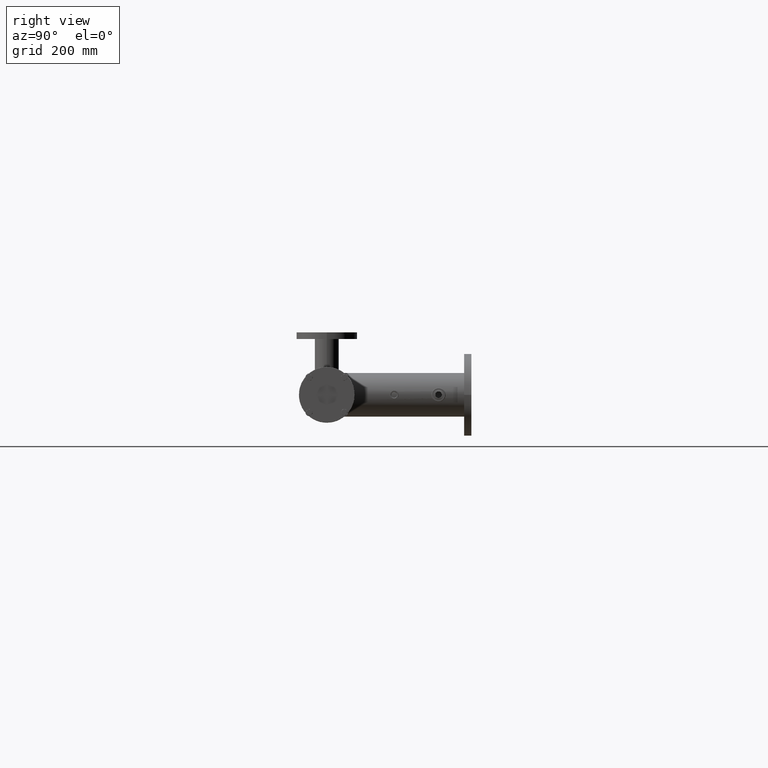
[diagram: clean part render]
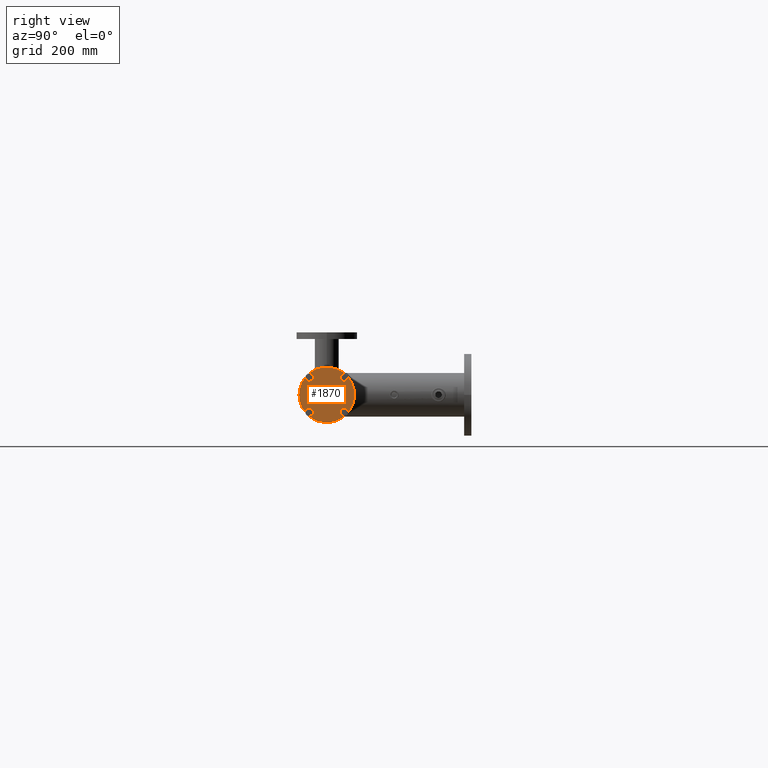
[diagram: same view with one face highlighted and labeled with its STEP entity id]
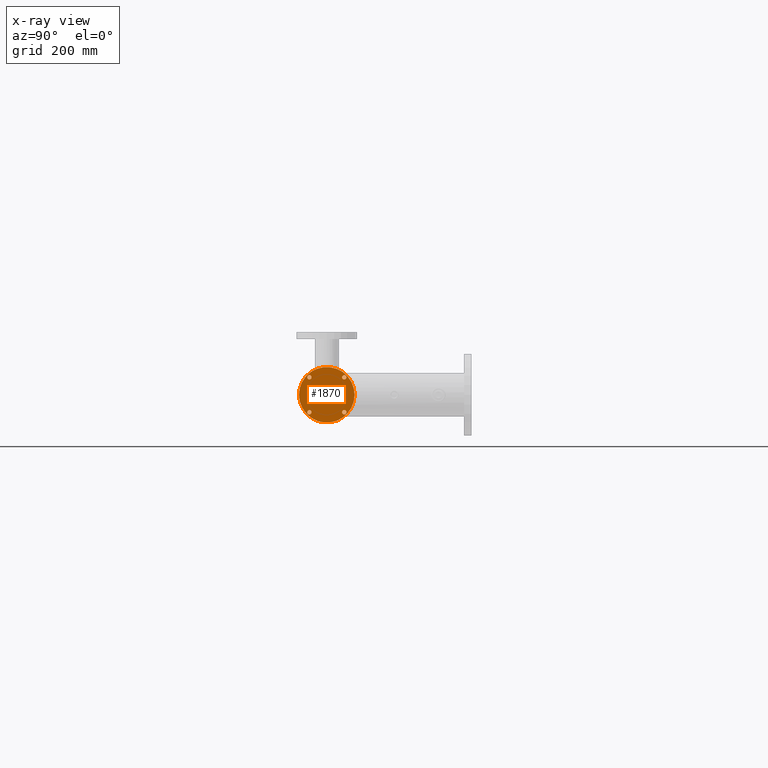
[diagram: x-ray of the same camera — body ghosted, the highlighted face saturated]
A machine part, right view. The second image highlights one B-rep face of the part: STEP entity #1870.
The next image is the same camera in x-ray: the body ghosted, the highlighted face saturated — about 0% of this face is hidden behind the body in this view.
In plain terms, the highlighted planar face has unit normal (1, 0, 0).
Its self-contained STEP definition (entity closure, byte-faithful):
#167 = DIRECTION ( 'NONE',  ( -0.000000000000000000, -0.000000000000000000, 1.000000000000000000 ) ) ;
#240 = EDGE_LOOP ( 'NONE', ( #4253, #1557 ) ) ;
#283 = CIRCLE ( 'NONE', #6051, 84.49999999999998579 ) ;
#296 = EDGE_CURVE ( 'NONE', #3242, #1029, #283, .T. ) ;
#459 = CIRCLE ( 'NONE', #3777, 6.499999999999999112 ) ;
#503 = FACE_OUTER_BOUND ( 'NONE', #8815, .T. ) ;
#521 = CARTESIAN_POINT ( 'NONE',  ( 53.03300858899152104, -53.03300858899059023, 15.00000000000000000 ) ) ;
#553 = VERTEX_POINT ( 'NONE', #3264 ) ;
#594 = VERTEX_POINT ( 'NONE', #9903 ) ;
#657 = FACE_BOUND ( 'NONE', #8044, .T. ) ;
#991 = CARTESIAN_POINT ( 'NONE',  ( 59.53300858899114445, 53.03300858899096681, 15.00000000000000000 ) ) ;
#1029 = VERTEX_POINT ( 'NONE', #5595 ) ;
#1121 = CIRCLE ( 'NONE', #1459, 6.499999999999999112 ) ;
#1249 = CARTESIAN_POINT ( 'NONE',  ( -46.53300858899115156, -53.03300858899096681, 15.00000000000000000 ) ) ;
#1316 = DIRECTION ( 'NONE',  ( 1.000000000000000000, 0.000000000000000000, 0.000000000000000000 ) ) ;
#1379 = FACE_BOUND ( 'NONE', #6490, .T. ) ;
#1449 = AXIS2_PLACEMENT_3D ( 'NONE', #1764, #167, #2500 ) ;
#1453 = CARTESIAN_POINT ( 'NONE',  ( 46.53300858899115156, 53.03300858899096681, 15.00000000000000000 ) ) ;
#1459 = AXIS2_PLACEMENT_3D ( 'NONE', #8703, #5452, #8599 ) ;
#1548 = DIRECTION ( 'NONE',  ( -0.000000000000000000, -0.000000000000000000, 1.000000000000000000 ) ) ;
#1557 = ORIENTED_EDGE ( 'NONE', *, *, #6413, .F. ) ;
#1642 = ORIENTED_EDGE ( 'NONE', *, *, #6921, .F. ) ;
#1764 = CARTESIAN_POINT ( 'NONE',  ( 53.03300858899114445, 53.03300858899096681, 15.00000000000000000 ) ) ;
#1812 = CIRCLE ( 'NONE', #9071, 6.499999999999999112 ) ;
#1870 = ADVANCED_FACE ( 'NONE', ( #503, #9167, #657, #6069, #1379 ), #9278, .T. ) ;
#1956 = VERTEX_POINT ( 'NONE', #7618 ) ;
#2089 = DIRECTION ( 'NONE',  ( 1.000000000000000000, 0.000000000000000000, -0.000000000000000000 ) ) ;
#2101 = CIRCLE ( 'NONE', #1449, 6.499999999999999112 ) ;
#2109 = CARTESIAN_POINT ( 'NONE',  ( 0.000000000000000000, 0.000000000000000000, 15.00000000000000000 ) ) ;
#2339 = VERTEX_POINT ( 'NONE', #1453 ) ;
#2500 = DIRECTION ( 'NONE',  ( 1.000000000000000000, 0.000000000000000000, 0.000000000000000000 ) ) ;
#2642 = CIRCLE ( 'NONE', #3808, 6.499999999999999112 ) ;
#2770 = VERTEX_POINT ( 'NONE', #1249 ) ;
#2923 = CARTESIAN_POINT ( 'NONE',  ( 59.53300858899152104, -53.03300858899059023, 15.00000000000000000 ) ) ;
#3074 = DIRECTION ( 'NONE',  ( 1.000000000000000000, 0.000000000000000000, 0.000000000000000000 ) ) ;
#3116 = CARTESIAN_POINT ( 'NONE',  ( -53.03300858899115156, 53.03300858899095971, 15.00000000000000000 ) ) ;
#3192 = ORIENTED_EDGE ( 'NONE', *, *, #9200, .T. ) ;
#3242 = VERTEX_POINT ( 'NONE', #7255 ) ;
#3263 = AXIS2_PLACEMENT_3D ( 'NONE', #7724, #5402, #2089 ) ;
#3264 = CARTESIAN_POINT ( 'NONE',  ( -59.53300858899115156, 53.03300858899095971, 15.00000000000000000 ) ) ;
#3496 = EDGE_CURVE ( 'NONE', #7315, #594, #1121, .T. ) ;
#3673 = DIRECTION ( 'NONE',  ( -0.000000000000000000, -0.000000000000000000, 1.000000000000000000 ) ) ;
#3777 = AXIS2_PLACEMENT_3D ( 'NONE', #3116, #7130, #6243 ) ;
#3808 = AXIS2_PLACEMENT_3D ( 'NONE', #4011, #8756, #4833 ) ;
#3859 = CARTESIAN_POINT ( 'NONE',  ( -53.03300858899114445, -53.03300858899096681, 15.00000000000000000 ) ) ;
#3920 = DIRECTION ( 'NONE',  ( 1.000000000000000000, 0.000000000000000000, 0.000000000000000000 ) ) ;
#3983 = CIRCLE ( 'NONE', #4805, 6.499999999999999112 ) ;
#4011 = CARTESIAN_POINT ( 'NONE',  ( -53.03300858899115156, 53.03300858899095971, 15.00000000000000000 ) ) ;
#4026 = EDGE_LOOP ( 'NONE', ( #6592, #7897 ) ) ;
#4253 = ORIENTED_EDGE ( 'NONE', *, *, #9765, .F. ) ;
#4630 = ORIENTED_EDGE ( 'NONE', *, *, #6185, .F. ) ;
#4679 = ORIENTED_EDGE ( 'NONE', *, *, #9469, .F. ) ;
#4685 = CARTESIAN_POINT ( 'NONE',  ( -53.03300858899114445, -53.03300858899096681, 15.00000000000000000 ) ) ;
#4805 = AXIS2_PLACEMENT_3D ( 'NONE', #4685, #7829, #3920 ) ;
#4833 = DIRECTION ( 'NONE',  ( 1.000000000000000000, 0.000000000000000000, 0.000000000000000000 ) ) ;
#5402 = DIRECTION ( 'NONE',  ( 0.000000000000000000, 0.000000000000000000, 1.000000000000000000 ) ) ;
#5452 = DIRECTION ( 'NONE',  ( -0.000000000000000000, -0.000000000000000000, 1.000000000000000000 ) ) ;
#5529 = VERTEX_POINT ( 'NONE', #991 ) ;
#5595 = CARTESIAN_POINT ( 'NONE',  ( -84.49999999999998579, 0.000000000000000000, 15.00000000000000000 ) ) ;
#6051 = AXIS2_PLACEMENT_3D ( 'NONE', #2109, #10012, #8416 ) ;
#6069 = FACE_BOUND ( 'NONE', #240, .T. ) ;
#6135 = EDGE_CURVE ( 'NONE', #594, #7315, #6926, .T. ) ;
#6185 = EDGE_CURVE ( 'NONE', #2339, #5529, #1812, .T. ) ;
#6202 = CIRCLE ( 'NONE', #7347, 6.499999999999999112 ) ;
#6217 = ORIENTED_EDGE ( 'NONE', *, *, #7313, .F. ) ;
#6243 = DIRECTION ( 'NONE',  ( 1.000000000000000000, 0.000000000000000000, 0.000000000000000000 ) ) ;
#6413 = EDGE_CURVE ( 'NONE', #553, #1956, #2642, .T. ) ;
#6444 = DIRECTION ( 'NONE',  ( 1.000000000000000000, 0.000000000000000000, 0.000000000000000000 ) ) ;
#6490 = EDGE_LOOP ( 'NONE', ( #4679, #4630 ) ) ;
#6592 = ORIENTED_EDGE ( 'NONE', *, *, #3496, .F. ) ;
#6861 = CARTESIAN_POINT ( 'NONE',  ( -59.53300858899114445, -53.03300858899096681, 15.00000000000000000 ) ) ;
#6921 = EDGE_CURVE ( 'NONE', #9637, #2770, #3983, .T. ) ;
#6926 = CIRCLE ( 'NONE', #9726, 6.499999999999999112 ) ;
#6980 = CARTESIAN_POINT ( 'NONE',  ( 0.000000000000000000, 0.000000000000000000, 15.00000000000000000 ) ) ;
#7054 = AXIS2_PLACEMENT_3D ( 'NONE', #6980, #10135, #3074 ) ;
#7130 = DIRECTION ( 'NONE',  ( -0.000000000000000000, -0.000000000000000000, 1.000000000000000000 ) ) ;
#7255 = CARTESIAN_POINT ( 'NONE',  ( 84.49999999999998579, 1.037888162277381958E-14, 15.00000000000000000 ) ) ;
#7313 = EDGE_CURVE ( 'NONE', #2770, #9637, #6202, .T. ) ;
#7315 = VERTEX_POINT ( 'NONE', #2923 ) ;
#7347 = AXIS2_PLACEMENT_3D ( 'NONE', #3859, #8383, #1316 ) ;
#7618 = CARTESIAN_POINT ( 'NONE',  ( -46.53300858899115866, 53.03300858899095971, 15.00000000000000000 ) ) ;
#7709 = CIRCLE ( 'NONE', #7054, 84.49999999999998579 ) ;
#7724 = CARTESIAN_POINT ( 'NONE',  ( 0.000000000000000000, 0.000000000000000000, 15.00000000000000000 ) ) ;
#7829 = DIRECTION ( 'NONE',  ( -0.000000000000000000, -0.000000000000000000, 1.000000000000000000 ) ) ;
#7897 = ORIENTED_EDGE ( 'NONE', *, *, #6135, .F. ) ;
#7991 = CARTESIAN_POINT ( 'NONE',  ( 53.03300858899114445, 53.03300858899096681, 15.00000000000000000 ) ) ;
#8044 = EDGE_LOOP ( 'NONE', ( #6217, #1642 ) ) ;
#8383 = DIRECTION ( 'NONE',  ( -0.000000000000000000, -0.000000000000000000, 1.000000000000000000 ) ) ;
#8416 = DIRECTION ( 'NONE',  ( 1.000000000000000000, 0.000000000000000000, 0.000000000000000000 ) ) ;
#8599 = DIRECTION ( 'NONE',  ( 1.000000000000000000, 0.000000000000000000, 0.000000000000000000 ) ) ;
#8703 = CARTESIAN_POINT ( 'NONE',  ( 53.03300858899152104, -53.03300858899059023, 15.00000000000000000 ) ) ;
#8756 = DIRECTION ( 'NONE',  ( -0.000000000000000000, -0.000000000000000000, 1.000000000000000000 ) ) ;
#8815 = EDGE_LOOP ( 'NONE', ( #3192, #9371 ) ) ;
#9071 = AXIS2_PLACEMENT_3D ( 'NONE', #7991, #1548, #6444 ) ;
#9167 = FACE_BOUND ( 'NONE', #4026, .T. ) ;
#9200 = EDGE_CURVE ( 'NONE', #1029, #3242, #7709, .T. ) ;
#9278 = PLANE ( 'NONE',  #3263 ) ;
#9371 = ORIENTED_EDGE ( 'NONE', *, *, #296, .T. ) ;
#9469 = EDGE_CURVE ( 'NONE', #5529, #2339, #2101, .T. ) ;
#9637 = VERTEX_POINT ( 'NONE', #6861 ) ;
#9726 = AXIS2_PLACEMENT_3D ( 'NONE', #521, #3673, #9962 ) ;
#9765 = EDGE_CURVE ( 'NONE', #1956, #553, #459, .T. ) ;
#9903 = CARTESIAN_POINT ( 'NONE',  ( 46.53300858899152104, -53.03300858899059023, 15.00000000000000000 ) ) ;
#9962 = DIRECTION ( 'NONE',  ( 1.000000000000000000, 0.000000000000000000, 0.000000000000000000 ) ) ;
#10012 = DIRECTION ( 'NONE',  ( 0.000000000000000000, 0.000000000000000000, 1.000000000000000000 ) ) ;
#10135 = DIRECTION ( 'NONE',  ( 0.000000000000000000, 0.000000000000000000, 1.000000000000000000 ) ) ;